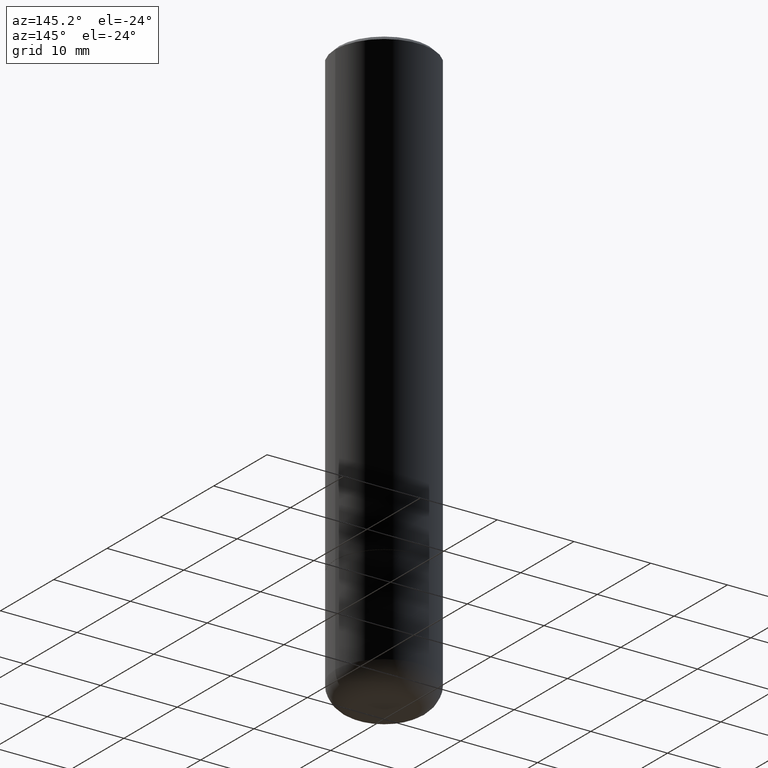
[diagram: clean part render]
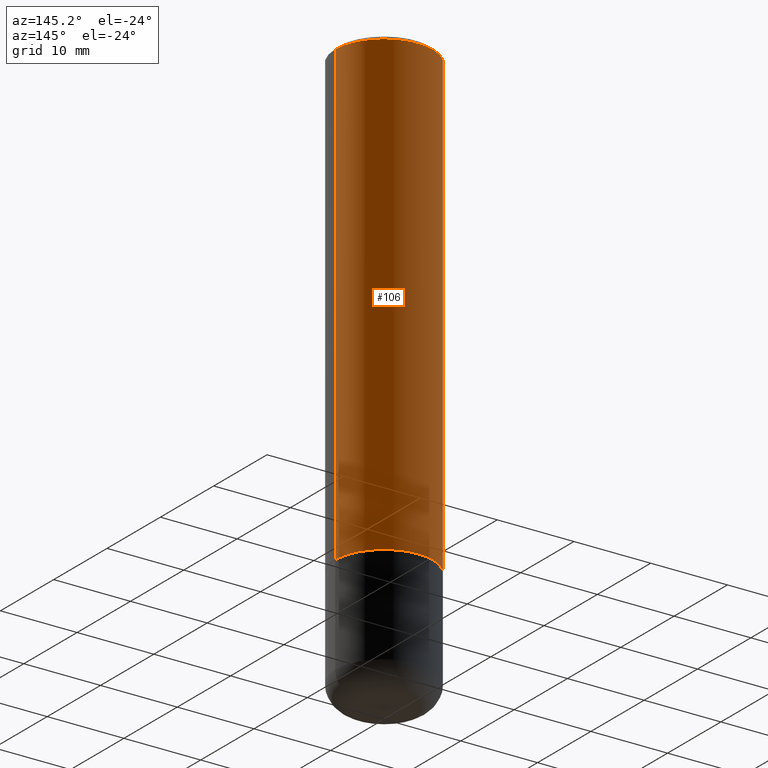
[diagram: same view with one face highlighted and labeled with its STEP entity id]
A machine part, auxiliary view. The second image highlights one B-rep face of the part: STEP entity #106.
In plain terms, the highlighted cylindrical surface (partial cylindrical patch) has radius 6.35 mm, axis along (-0, 0, 1).
Its self-contained STEP definition (entity closure, byte-faithful):
#6 = VECTOR ( 'NONE', #15, 39.37007874015748143 ) ;
#15 = DIRECTION ( 'NONE',  ( -2.445468806185136877E-29, 3.491481338843145188E-15, 1.000000000000000000 ) ) ;
#32 = VERTEX_POINT ( 'NONE', #308 ) ;
#37 = DIRECTION ( 'NONE',  ( -2.445468806185136877E-29, 3.491481338843145188E-15, 1.000000000000000000 ) ) ;
#50 = AXIS2_PLACEMENT_3D ( 'NONE', #446, #323, #320 ) ;
#52 = CIRCLE ( 'NONE', #384, 0.2499999999999995837 ) ;
#57 = VERTEX_POINT ( 'NONE', #90 ) ;
#66 = CARTESIAN_POINT ( 'NONE',  ( 0.2499999999999993061, -1.784954126219741456E-15, -0.02000000000000011838 ) ) ;
#69 = DIRECTION ( 'NONE',  ( -2.445468806185136597E-29, 3.491481338843145583E-15, 1.000000000000000000 ) ) ;
#78 = DIRECTION ( 'NONE',  ( 1.000000000000000000, -6.982962677686270655E-15, 0.000000000000000000 ) ) ;
#82 = DIRECTION ( 'NONE',  ( -2.445468806185136597E-29, 3.491481338843145583E-15, 1.000000000000000000 ) ) ;
#87 = CARTESIAN_POINT ( 'NONE',  ( -0.2499999999999994449, 1.776356839400246520E-15, -1.229733772563723783E-29 ) ) ;
#90 = CARTESIAN_POINT ( 'NONE',  ( -0.2499999999999995559, -2.402946323194996317E-15, -2.374000000000000110 ) ) ;
#96 = EDGE_CURVE ( 'NONE', #57, #259, #128, .T. ) ;
#106 = ADVANCED_FACE ( 'NONE', ( #299 ), #168, .T. ) ;
#125 = ORIENTED_EDGE ( 'NONE', *, *, #143, .F. ) ;
#128 = LINE ( 'NONE', #87, #424 ) ;
#143 = EDGE_CURVE ( 'NONE', #160, #259, #397, .T. ) ;
#160 = VERTEX_POINT ( 'NONE', #66 ) ;
#166 = LINE ( 'NONE', #476, #6 ) ;
#168 = CYLINDRICAL_SURFACE ( 'NONE', #50, 0.2499999999999994449 ) ;
#219 = DIRECTION ( 'NONE',  ( 1.000000000000000000, -6.982962677686267499E-15, 0.000000000000000000 ) ) ;
#224 = ORIENTED_EDGE ( 'NONE', *, *, #463, .F. ) ;
#245 = CARTESIAN_POINT ( 'NONE',  ( 4.890937612370302936E-31, -6.982962677686332285E-17, -0.02000000000000011838 ) ) ;
#259 = VERTEX_POINT ( 'NONE', #286 ) ;
#266 = CARTESIAN_POINT ( 'NONE',  ( 5.805542945883514935E-29, -8.288776698413628688E-15, -2.374000000000000110 ) ) ;
#286 = CARTESIAN_POINT ( 'NONE',  ( -0.2499999999999993061, 1.675911042644698449E-15, -0.02000000000000011838 ) ) ;
#298 = AXIS2_PLACEMENT_3D ( 'NONE', #245, #69, #219 ) ;
#299 = FACE_OUTER_BOUND ( 'NONE', #338, .T. ) ;
#308 = CARTESIAN_POINT ( 'NONE',  ( 0.2499999999999995837, -1.003451736783519379E-14, -2.374000000000000110 ) ) ;
#320 = DIRECTION ( 'NONE',  ( 1.000000000000000000, -6.982962677686266711E-15, 4.876176775795935232E-29 ) ) ;
#323 = DIRECTION ( 'NONE',  ( -2.445468806185136597E-29, 3.491481338843145583E-15, 1.000000000000000000 ) ) ;
#334 = ORIENTED_EDGE ( 'NONE', *, *, #96, .T. ) ;
#338 = EDGE_LOOP ( 'NONE', ( #484, #334, #125, #224 ) ) ;
#384 = AXIS2_PLACEMENT_3D ( 'NONE', #266, #82, #78 ) ;
#389 = EDGE_CURVE ( 'NONE', #32, #57, #52, .T. ) ;
#397 = CIRCLE ( 'NONE', #298, 0.2499999999999993061 ) ;
#424 = VECTOR ( 'NONE', #37, 39.37007874015748143 ) ;
#446 = CARTESIAN_POINT ( 'NONE',  ( 0.000000000000000000, 0.000000000000000000, 0.000000000000000000 ) ) ;
#463 = EDGE_CURVE ( 'NONE', #32, #160, #166, .T. ) ;
#476 = CARTESIAN_POINT ( 'NONE',  ( 0.2499999999999994449, -1.745740669421562733E-15, 1.219044193948981146E-29 ) ) ;
#484 = ORIENTED_EDGE ( 'NONE', *, *, #389, .T. ) ;